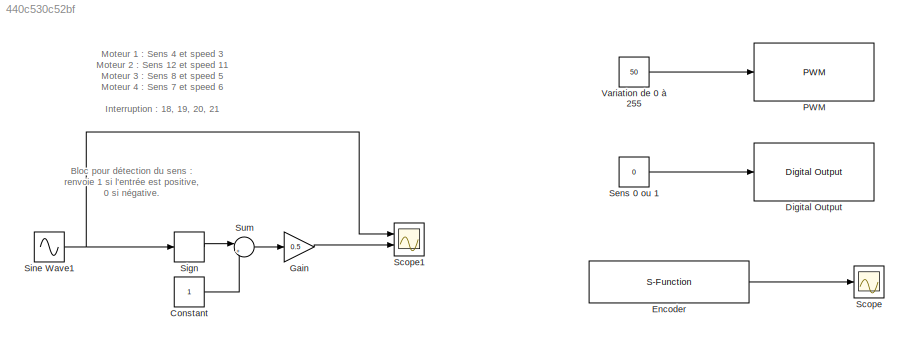
MODEL slx_440c530c52bf
KIND model
CONFIG AbsTol = auto
CONFIG EnableMultiTasking = off
CONFIG FixedStep = auto
CONFIG MaxStep = auto
CONFIG MinStep = auto
CONFIG RelTol = 1e-3
CONFIG SampleTimeConstraint = Unconstrained
CONFIG SolverName = VariableStepAuto
CONFIG StartTime = 0.0
CONFIG StopTime = 10.0
BLOCK [Constant] Constant
BLOCK [Reference] Digital Output  REF=arduinolib/Digital Output
  Commented = on
  Ports = [1]
  SourceBlock = arduinolib/Digital Output
  SourceProductBaseCode = ARDUINO
  SourceType = Arduino Digital Output
BLOCK [S-Function] Encoder
  Commented = on
  CopyFcn = set_param(gcbh,'LinkStatus','none')
  EnableBusSupport = off
  FunctionName = sfcn_encoder
  InitFcn = try, set_param(gcb,'FunctionName','sfcn_encoder'), end
  OpenFcn = sfunctionwizard(gcbh)
  Parameters = uint8(0),uint8(18),uint8(19)
  Ports = [0, 1]
  PreSaveFcn = try, set_param(gcb,'FunctionName','sfcn_encoder'), end
  SFcnIsStateOwnerBlock = off
  SFunctionDeploymentMode = off
  SFunctionModules = sfcn_encoder_wrapper
BLOCK [Gain] Gain
  Gain = 0.5
BLOCK [Reference] PWM  REF=arduinolib/PWM
  Commented = on
  Ports = [1]
  SourceBlock = arduinolib/PWM
  SourceProductBaseCode = ARDUINO
  SourceType = Arduino PWM
BLOCK [Scope] Scope
  Commented = on
  Floating = off
  NumInputPorts = 1
  Ports = [1]
  ScopeSpecificationString = Simulink.scopes.TimeScopeBlockCfg('CurrentConfiguration', extmgr.ConfigurationSet(extmgr.Configuration('Core','General UI',true),extmgr.Configuration('Core','Source UI',true),extmgr.Configuration('Sources','WiredSimulink',true),extmgr.Configuration('Visuals','Time Domain',true,'SerializedDisplays',{struct('MinYLimReal','-494.25','MaxYLimReal','4448.25','YLabelReal','','MinYLimMag',' 0.00000','MaxY...<+1771ch>
BLOCK [Scope] Scope1
  Floating = off
  NumInputPorts = 2
  Ports = [2]
  ScopeSpecificationString = Simulink.scopes.TimeScopeBlockCfg('CurrentConfiguration', extmgr.ConfigurationSet(extmgr.Configuration('Core','General UI',true),extmgr.Configuration('Core','Source UI',true),extmgr.Configuration('Sources','WiredSimulink',true,'DataLoggingVariableName','ScopeData1'),extmgr.Configuration('Visuals','Time Domain',true,'SerializedDisplays',{struct('MinYLimReal','-3.7484','MaxYLimReal','3.7484','YLabel...<+1370ch>
BLOCK [Constant] Sens 0 ou 1
  Commented = on
  Value = 0
BLOCK [Signum] Sign
BLOCK [Sin] Sine Wave1
  Amplitude = 3
  Ports = [0, 1]
  SampleTime = 0
BLOCK [Sum] Sum
  Inputs = |++
  Ports = [2, 1]
BLOCK [Constant] Variation de 0 à 255
  Commented = on
  Value = 50
ANNOTATION (root): Bloc pour détection du sens : renvoie 1 si l'entrée est positive, 0 si négative.
ANNOTATION (root): Moteur 1 : Sens 4 et speed 3 Moteur 2 : Sens 12 et speed 11 Moteur 3 : Sens 8 et speed 5 Moteur 4 : Sens 7 et speed 6 Interruption : 18, 19, 20, 21
LINE Constant:1 -> Sum:2
LINE Encoder:1 -> Scope:1
LINE Gain:1 -> Scope1:2
LINE Sens 0 ou 1:1 -> Digital Output:1
LINE Sign:1 -> Sum:1
NET Sine Wave1:1 -> Scope1:1, Sign:1
LINE Sum:1 -> Gain:1
LINE Variation de 0 à 255:1 -> PWM:1
note: NET lines group one-source signal fan-out (src -> all destinations, sorted); 1:1 wires keep LINE
